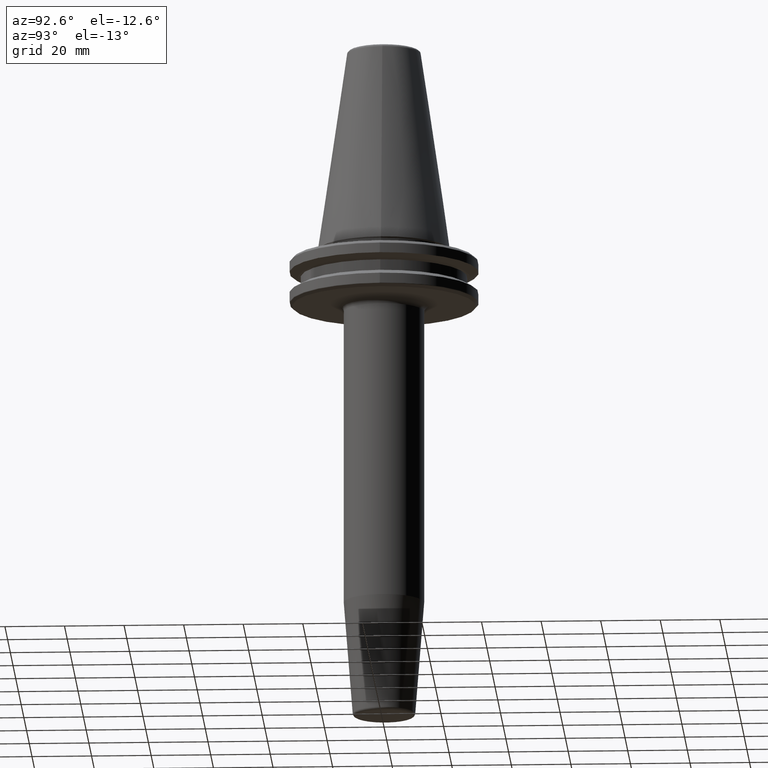
[diagram: clean part render]
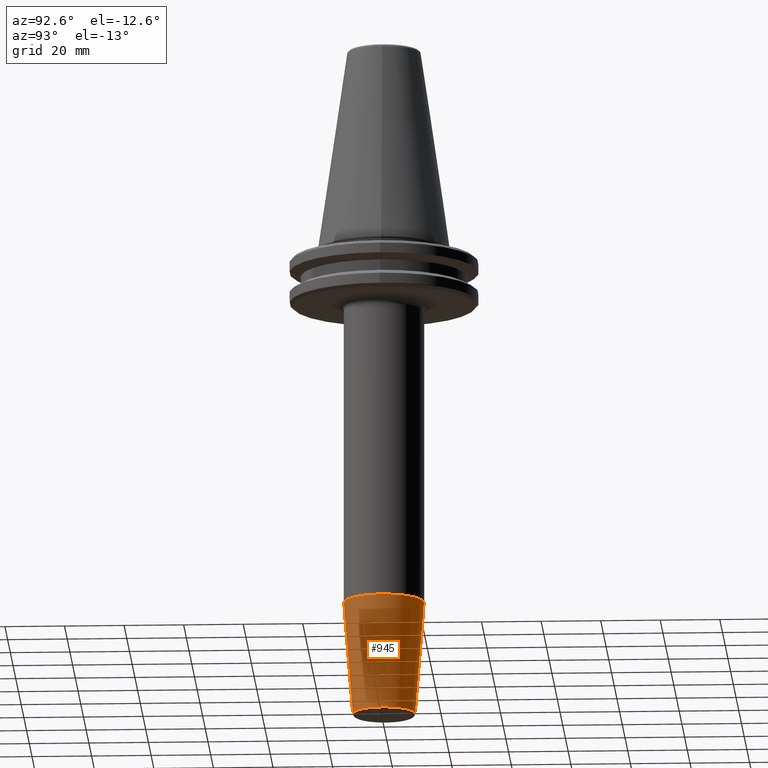
[diagram: same view with one face highlighted and labeled with its STEP entity id]
A machine part, auxiliary view. The second image highlights one B-rep face of the part: STEP entity #945.
In plain terms, the highlighted conical surface has half-angle 4.5 deg.
Its self-contained STEP definition (entity closure, byte-faithful):
#83 = ORIENTED_EDGE ( 'NONE', *, *, #904, .F. ) ;
#99 = DIRECTION ( 'NONE',  ( 0.0000000000000000000, -0.07845909572783682500, 0.9969173337331286300 ) ) ;
#130 = CARTESIAN_POINT ( 'NONE',  ( 0.0000000000000000000, 10.49999999999999800, -159.0784590957278500 ) ) ;
#148 = CIRCLE ( 'NONE', #1236, 13.50000000000000500 ) ;
#167 = AXIS2_PLACEMENT_3D ( 'NONE', #775, #783, #1176 ) ;
#232 = VECTOR ( 'NONE', #99, 1000.000000000000000 ) ;
#240 = EDGE_LOOP ( 'NONE', ( #1080, #1019, #317, #83 ) ) ;
#303 = DIRECTION ( 'NONE',  ( 0.0000000000000000000, -1.000000000000000000, 0.0000000000000000000 ) ) ;
#317 = ORIENTED_EDGE ( 'NONE', *, *, #1049, .T. ) ;
#395 = CONICAL_SURFACE ( 'NONE', #1224, 10.50000000000000000, 0.07853981633973655700 ) ;
#401 = CIRCLE ( 'NONE', #167, 10.50000000000000000 ) ;
#465 = FACE_OUTER_BOUND ( 'NONE', #240, .T. ) ;
#501 = CARTESIAN_POINT ( 'NONE',  ( 0.0000000000000000000, -10.50000000000000000, -159.0784590957278500 ) ) ;
#526 = LINE ( 'NONE', #501, #232 ) ;
#529 = EDGE_CURVE ( 'NONE', #1254, #958, #401, .T. ) ;
#557 = DIRECTION ( 'NONE',  ( -0.0000000000000000000, 1.256330602389183300E-016, -1.000000000000000000 ) ) ;
#609 = CARTESIAN_POINT ( 'NONE',  ( 1.653273178848927500E-015, 13.50000000000000000, -120.9598448871996500 ) ) ;
#697 = CARTESIAN_POINT ( 'NONE',  ( 1.285879139104720800E-015, 10.50000000000000000, -159.0784590957278500 ) ) ;
#702 = VERTEX_POINT ( 'NONE', #884 ) ;
#775 = CARTESIAN_POINT ( 'NONE',  ( 0.0000000000000000000, 3.310199825829634700E-016, -159.0784590957278500 ) ) ;
#783 = DIRECTION ( 'NONE',  ( -0.0000000000000000000, 1.256330602389183300E-016, -1.000000000000000000 ) ) ;
#884 = CARTESIAN_POINT ( 'NONE',  ( 0.0000000000000000000, -13.50000000000001100, -120.9598448871996500 ) ) ;
#904 = EDGE_CURVE ( 'NONE', #958, #702, #526, .T. ) ;
#922 = VECTOR ( 'NONE', #994, 1000.000000000000000 ) ;
#945 = ADVANCED_FACE ( 'NONE', ( #465 ), #395, .T. ) ;
#958 = VERTEX_POINT ( 'NONE', #1069 ) ;
#994 = DIRECTION ( 'NONE',  ( 9.608468044709099700E-018, 0.07845909572783657500, 0.9969173337331286300 ) ) ;
#1019 = ORIENTED_EDGE ( 'NONE', *, *, #1028, .T. ) ;
#1028 = EDGE_CURVE ( 'NONE', #1254, #1216, #1170, .T. ) ;
#1049 = EDGE_CURVE ( 'NONE', #1216, #702, #148, .T. ) ;
#1058 = DIRECTION ( 'NONE',  ( 0.0000000000000000000, -1.256330602389183300E-016, 1.000000000000000000 ) ) ;
#1069 = CARTESIAN_POINT ( 'NONE',  ( 1.285879139104720600E-015, -10.49999999999999800, -159.0784590957278500 ) ) ;
#1080 = ORIENTED_EDGE ( 'NONE', *, *, #529, .F. ) ;
#1115 = CARTESIAN_POINT ( 'NONE',  ( 0.0000000000000000000, -4.457938172501148500E-015, -120.9598448871996500 ) ) ;
#1168 = CARTESIAN_POINT ( 'NONE',  ( 0.0000000000000000000, 3.310199825829634700E-016, -159.0784590957278500 ) ) ;
#1170 = LINE ( 'NONE', #697, #922 ) ;
#1176 = DIRECTION ( 'NONE',  ( 0.0000000000000000000, 1.000000000000000000, 0.0000000000000000000 ) ) ;
#1216 = VERTEX_POINT ( 'NONE', #609 ) ;
#1224 = AXIS2_PLACEMENT_3D ( 'NONE', #1168, #1058, #303 ) ;
#1225 = DIRECTION ( 'NONE',  ( 0.0000000000000000000, 1.000000000000000000, 0.0000000000000000000 ) ) ;
#1236 = AXIS2_PLACEMENT_3D ( 'NONE', #1115, #557, #1225 ) ;
#1254 = VERTEX_POINT ( 'NONE', #130 ) ;